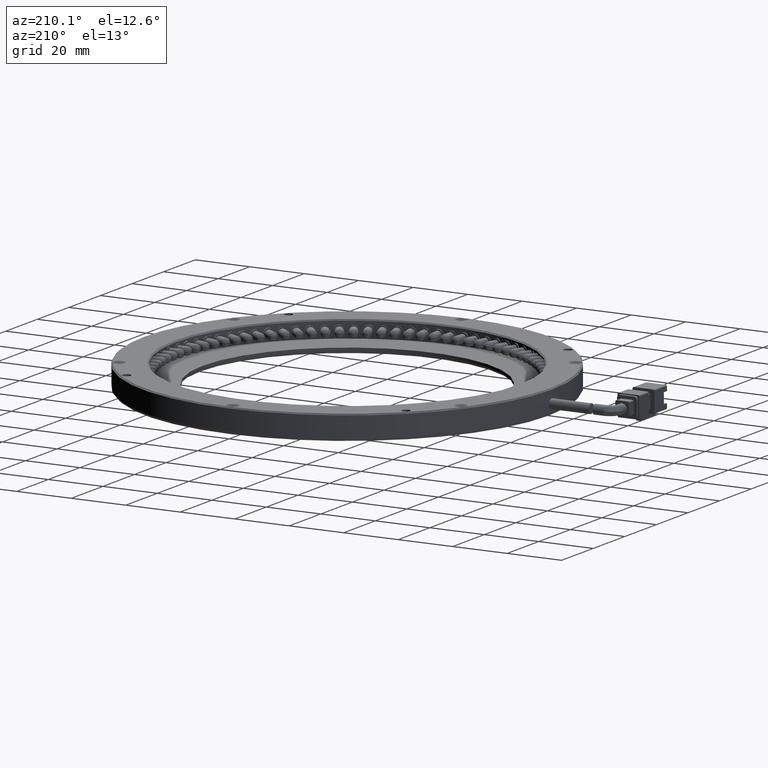
[diagram: clean part render]
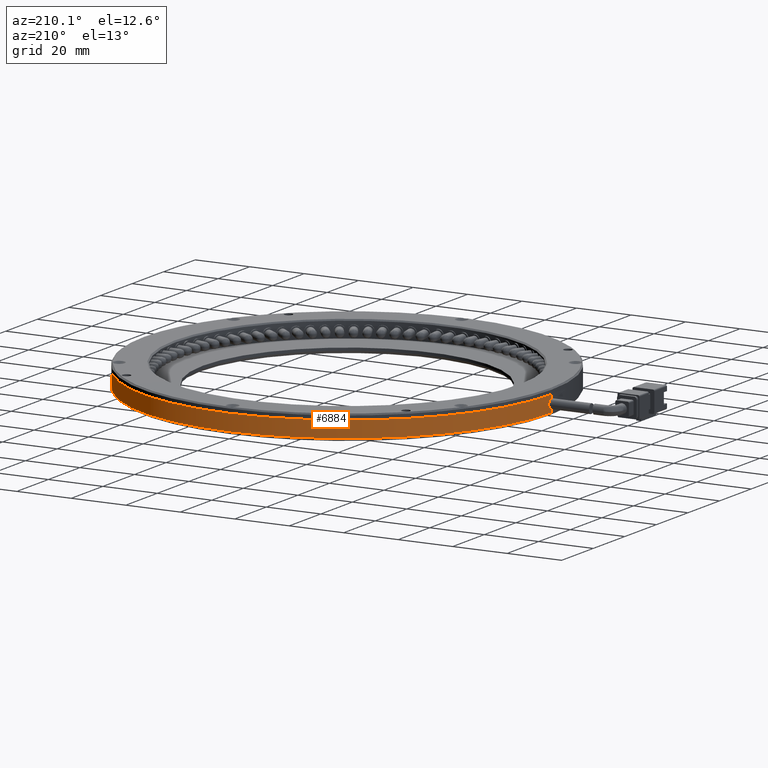
[diagram: same view with one face highlighted and labeled with its STEP entity id]
A machine part, auxiliary view. The second image highlights one B-rep face of the part: STEP entity #6884.
In plain terms, the highlighted cylindrical surface (partial cylindrical patch) has radius 75 mm, axis along (-0, -0, -1).
Its self-contained STEP definition (entity closure, byte-faithful):
#14 = DIRECTION ( 'NONE',  ( 0.0000000000000000000, 0.0000000000000000000, 1.000000000000000000 ) ) ;
#96 = CARTESIAN_POINT ( 'NONE',  ( 85.51580544391339300, 7.870568091706170200, 0.1525449449113775400 ) ) ;
#576 = CARTESIAN_POINT ( 'NONE',  ( 85.58350968957468300, 7.078015308578138800, -0.6356882467442867000 ) ) ;
#1423 = CARTESIAN_POINT ( 'NONE',  ( 85.56051704384231000, 7.358192984523894300, 1.555685530713489100 ) ) ;
#1522 = DIRECTION ( 'NONE',  ( -0.0000000000000000000, -0.0000000000000000000, -1.000000000000000000 ) ) ;
#1578 = CARTESIAN_POINT ( 'NONE',  ( 85.73361178171110500, 4.744528867740992700, 1.319627264999875500 ) ) ;
#1800 = CARTESIAN_POINT ( 'NONE',  ( -64.17760152284266400, 1.095939086294420100, 3.499999999999937400 ) ) ;
#1903 = CARTESIAN_POINT ( 'NONE',  ( 85.65214963128302400, 6.146517489965676300, -0.2466400506818331500 ) ) ;
#1935 = CARTESIAN_POINT ( 'NONE',  ( 85.58606086792164500, 7.045291019548587400, 1.276991541258669600 ) ) ;
#2181 = VERTEX_POINT ( 'NONE', #18053 ) ;
#2228 = CARTESIAN_POINT ( 'NONE',  ( -64.17555533283174900, 1.659988617485706100, -1.160573113875375400 ) ) ;
#2287 = CARTESIAN_POINT ( 'NONE',  ( 85.55198300067344500, 7.459051292020880900, 0.8696390190855857200 ) ) ;
#2341 = LINE ( 'NONE', #64778, #65179 ) ;
#2364 = EDGE_CURVE ( 'NONE', #41482, #13830, #58326, .T. ) ;
#2489 = CARTESIAN_POINT ( 'NONE',  ( -64.16110453020559100, 2.669531688190592200, 1.274237973008328400 ) ) ;
#2776 = VERTEX_POINT ( 'NONE', #62612 ) ;
#2918 = B_SPLINE_CURVE_WITH_KNOTS ( 'NONE', 3,
 ( #24277, #48483, #96, #42627, #6137, #48751, #12272, #54859 ),
 .UNSPECIFIED., .F., .F.,
 ( 4, 2, 2, 4 ),
 ( 0.0000000000000000000, 0.0001610029784808218300, 0.0003220059569616436500, 0.0006440119139232850300 ),
 .UNSPECIFIED. ) ;
#3190 = EDGE_CURVE ( 'NONE', #10618, #63048, #16115, .T. ) ;
#3433 = CARTESIAN_POINT ( 'NONE',  ( 85.46438512428439100, 8.415353828514325200, -0.03739514228137134200 ) ) ;
#3445 = B_SPLINE_CURVE_WITH_KNOTS ( 'NONE', 3,
 ( #77102, #4182, #46818, #10300, #52928, #16481, #59048, #22605, #65147, #28706 ),
 .UNSPECIFIED., .F., .F.,
 ( 4, 2, 2, 2, 4 ),
 ( 0.0000000000000000000, 0.0003378820057506175500, 0.0006757640115012374900, 0.001013646017251857500, 0.001351528023002477400 ),
 .UNSPECIFIED. ) ;
#3549 = EDGE_LOOP ( 'NONE', ( #41357, #23750, #61567, #31688, #57726, #12727, #47667, #16552, #25845, #52069 ) ) ;
#3853 = EDGE_CURVE ( 'NONE', #51274, #10618, #6398, .T. ) ;
#3905 = CARTESIAN_POINT ( 'NONE',  ( 85.79176449676579400, 3.239337933448679200, 3.499999999999948900 ) ) ;
#3949 = B_SPLINE_CURVE_WITH_KNOTS ( 'NONE', 3,
 ( #22767, #59211, #65313, #28873, #71444, #35023, #77535, #41088, #4603, #47254 ),
 .UNSPECIFIED., .F., .F.,
 ( 4, 2, 2, 2, 4 ),
 ( 0.0000000000000000000, 0.0001630378163895705700, 0.0003260756327791411500, 0.0004891134491687117800, 0.0006521512655582823000 ),
 .UNSPECIFIED. ) ;
#4101 = CARTESIAN_POINT ( 'NONE',  ( 85.71046638832190500, 5.191947452107305200, -0.6652447018446755500 ) ) ;
#4182 = CARTESIAN_POINT ( 'NONE',  ( 85.54260023393537400, 7.569244266362247200, 0.8467972752543024800 ) ) ;
#4221 = CARTESIAN_POINT ( 'NONE',  ( 85.73049999876060700, 4.808097012297963600, -0.1226339608918008100 ) ) ;
#4425 = CARTESIAN_POINT ( 'NONE',  ( 85.69643198758593900, 5.441325086166378000, 1.500537510464560400 ) ) ;
#4499 = VERTEX_POINT ( 'NONE', #74899 ) ;
#4561 = CARTESIAN_POINT ( 'NONE',  ( 85.73826633260338800, 4.648175953279853400, -0.5355270289887166200 ) ) ;
#4603 = CARTESIAN_POINT ( 'NONE',  ( 85.55190220552968600, 7.460243029796308700, 1.553691176691353500 ) ) ;
#4747 = EDGE_CURVE ( 'NONE', #50152, #60232, #45806, .T. ) ;
#4847 = CARTESIAN_POINT ( 'NONE',  ( 85.66583456614552000, 5.941517292149493200, -0.05875272363211801000 ) ) ;
#4852 = CARTESIAN_POINT ( 'NONE',  ( 85.55382189115601900, 7.437417976715300600, 0.4277785539693462800 ) ) ;
#4941 = CARTESIAN_POINT ( 'NONE',  ( 85.57246421834504700, 7.214710487214031100, 0.4724769187422969100 ) ) ;
#5115 = VECTOR ( 'NONE', #46187, 1000.000000000000000 ) ;
#5196 = CIRCLE ( 'NONE', #71745, 75.00000000000001400 ) ;
#5346 = CARTESIAN_POINT ( 'NONE',  ( 85.59137485120378100, 6.979025698614962400, 1.861284122017069500 ) ) ;
#5472 = CARTESIAN_POINT ( 'NONE',  ( 85.75964494529216600, 4.163649531573941700, 1.245162455931606100 ) ) ;
#5644 = ORIENTED_EDGE ( 'NONE', *, *, #6532, .F. ) ;
#5737 = VERTEX_POINT ( 'NONE', #73089 ) ;
#6037 = EDGE_CURVE ( 'NONE', #29509, #13191, #21362, .T. ) ;
#6038 = CARTESIAN_POINT ( 'NONE',  ( 10.82239847715735200, 1.095939086294420100, -0.6187330739377272500 ) ) ;
#6128 = VERTEX_POINT ( 'NONE', #40817 ) ;
#6137 = CARTESIAN_POINT ( 'NONE',  ( 85.52384849178957900, 7.781397434964434400, 0.2865401357152651500 ) ) ;
#6398 = CIRCLE ( 'NONE', #37858, 75.00000000000001400 ) ;
#6532 = EDGE_CURVE ( 'NONE', #50652, #4499, #14493, .T. ) ;
#6628 = CARTESIAN_POINT ( 'NONE',  ( 85.60436376792317500, 6.811285033781914900, -0.5276803122504231100 ) ) ;
#6884 = ADVANCED_FACE ( 'NONE', ( #64011, #31646, #64821, #15430 ), #23974, .T. ) ;
#7502 = VERTEX_POINT ( 'NONE', #1800 ) ;
#7557 = EDGE_CURVE ( 'NONE', #54906, #5737, #26903, .T. ) ;
#7640 = CARTESIAN_POINT ( 'NONE',  ( 85.73926044653839500, 4.626389355304823400, 1.023968722299577900 ) ) ;
#7744 = CARTESIAN_POINT ( 'NONE',  ( 85.51769994288605400, 7.849600237396815700, 1.137080879550713900 ) ) ;
#7917 = CARTESIAN_POINT ( 'NONE',  ( 85.58911290672195100, 7.008906390167766200, -0.2704685028219306900 ) ) ;
#8314 = CARTESIAN_POINT ( 'NONE',  ( -64.17254035220459200, 1.972407555903408700, -1.019005894296440800 ) ) ;
#8583 = CARTESIAN_POINT ( 'NONE',  ( -64.16470531755146600, 2.488157947474693100, 1.566408865755257300 ) ) ;
#8733 = ORIENTED_EDGE ( 'NONE', *, *, #39461, .T. ) ;
#9107 = EDGE_LOOP ( 'NONE', ( #38343, #17592, #17819, #45129, #76053, #20526, #23021, #43001, #18406, #69502, #68813, #47680, #37589, #75239 ) ) ;
#9128 = LINE ( 'NONE', #49200, #23427 ) ;
#9292 = CARTESIAN_POINT ( 'NONE',  ( 85.82239847715736400, 1.095939086294429400, 3.499999999999937400 ) ) ;
#9466 = LINE ( 'NONE', #25735, #38078 ) ;
#9521 = CARTESIAN_POINT ( 'NONE',  ( 85.46591878780222400, 8.399850993292897500, -0.1529008328249096000 ) ) ;
#9538 = B_SPLINE_CURVE_WITH_KNOTS ( 'NONE', 3,
 ( #72295, #11091, #41966, #5472, #48104, #11620, #54210, #17782, #60342, #23885 ),
 .UNSPECIFIED., .F., .F.,
 ( 4, 2, 2, 2, 4 ),
 ( 1.301042606982605500E-018, 0.0004718343931649076600, 0.0009436687863298140200, 0.001415503179494720300, 0.001887337572659626700 ),
 .UNSPECIFIED. ) ;
#9979 = ORIENTED_EDGE ( 'NONE', *, *, #51188, .T. ) ;
#10300 = CARTESIAN_POINT ( 'NONE',  ( 85.51410503318128100, 7.890077489507733700, 0.7441503104488043100 ) ) ;
#10333 = CARTESIAN_POINT ( 'NONE',  ( 85.71603764462942400, 5.090007912112359800, -0.2969013905976059000 ) ) ;
#10429 = CARTESIAN_POINT ( 'NONE',  ( 85.62634100142418000, 6.515365515925713800, 1.230104135364652700 ) ) ;
#10538 = CARTESIAN_POINT ( 'NONE',  ( 85.70646657540740400, 5.264897861603083500, 1.555685530713472900 ) ) ;
#10618 = VERTEX_POINT ( 'NONE', #40187 ) ;
#10677 = CARTESIAN_POINT ( 'NONE',  ( 85.74747750607217300, 4.448064863175271300, -0.4013368487209784700 ) ) ;
#10772 = CARTESIAN_POINT ( 'NONE',  ( 85.53827750510335200, 7.618272620791108500, -0.3127182383163930000 ) ) ;
#10986 = CARTESIAN_POINT ( 'NONE',  ( 85.65214963128302400, 6.146517489965628300, 0.2301041353646483800 ) ) ;
#11088 = CARTESIAN_POINT ( 'NONE',  ( 85.59812002527483800, 6.892545738829117100, 0.5864729204963071700 ) ) ;
#11091 = CARTESIAN_POINT ( 'NONE',  ( 85.76380396376370600, 4.060023050997011200, 0.7848510675663845600 ) ) ;
#11382 = DIRECTION ( 'NONE',  ( -0.0000000000000000000, -0.0000000000000000000, -1.000000000000000000 ) ) ;
#11386 = AXIS2_PLACEMENT_3D ( 'NONE', #62571, #26067, #68614 ) ;
#11491 = CARTESIAN_POINT ( 'NONE',  ( 85.56634895020339100, 7.288918311113904200, 1.914695853249525100 ) ) ;
#11620 = CARTESIAN_POINT ( 'NONE',  ( 85.74845840717979700, 4.426891529336969300, 1.646971550318758100 ) ) ;
#11651 = CARTESIAN_POINT ( 'NONE',  ( 85.82039042256055000, 1.644759783096986900, 3.499999999999940900 ) ) ;
#11805 = CARTESIAN_POINT ( 'NONE',  ( 10.82239847715735200, 1.095939086294420100, 3.499999999999937400 ) ) ;
#12135 = ORIENTED_EDGE ( 'NONE', *, *, #24482, .T. ) ;
#12187 = DIRECTION ( 'NONE',  ( 0.0000000000000000000, -1.000000000000000000, -6.662783750647585300E-015 ) ) ;
#12272 = CARTESIAN_POINT ( 'NONE',  ( 85.54484731577322500, 7.543179235955164200, 0.4083990393058972200 ) ) ;
#12727 = ORIENTED_EDGE ( 'NONE', *, *, #40124, .T. ) ;
#12761 = CARTESIAN_POINT ( 'NONE',  ( 85.62143490545028600, 6.583157864560703000, -0.3495414962016590900 ) ) ;
#12833 = VERTEX_POINT ( 'NONE', #1903 ) ;
#13065 = DIRECTION ( 'NONE',  ( -1.000000000000000000, 0.0000000000000000000, 0.0000000000000000000 ) ) ;
#13191 = VERTEX_POINT ( 'NONE', #29261 ) ;
#13807 = CARTESIAN_POINT ( 'NONE',  ( 85.74116555206873600, 4.585687141944184500, 0.7086522643759311000 ) ) ;
#13830 = VERTEX_POINT ( 'NONE', #60846 ) ;
#14084 = CARTESIAN_POINT ( 'NONE',  ( 85.55840858489298700, 7.383131876120323500, -0.3396633064957805800 ) ) ;
#14130 = B_SPLINE_CURVE_WITH_KNOTS ( 'NONE', 3,
 ( #65643, #53443, #4941, #47579, #11088, #53698, #17258, #59807, #23359, #65904 ),
 .UNSPECIFIED., .F., .F.,
 ( 4, 2, 2, 2, 4 ),
 ( 0.0000000000000000000, 0.0003405568085651276600, 0.0006811136171302553300, 0.001021670425695382900, 0.001362227234260510700 ),
 .UNSPECIFIED. ) ;
#14164 = CARTESIAN_POINT ( 'NONE',  ( 85.65955118150787900, 6.036855562714571000, -0.3924791085724572700 ) ) ;
#14209 = CARTESIAN_POINT ( 'NONE',  ( -64.17760152284266400, 1.211546039022340900, -1.250000000000065300 ) ) ;
#14469 = CARTESIAN_POINT ( 'NONE',  ( -64.16872406090023200, 2.252683252493468100, -0.8181323948411262100 ) ) ;
#14472 = EDGE_CURVE ( 'NONE', #51508, #65478, #20769, .T. ) ;
#14493 = CIRCLE ( 'NONE', #57279, 75.00000000000001400 ) ;
#14734 = CARTESIAN_POINT ( 'NONE',  ( -64.16872510365769200, 2.252677900903040900, 1.818253525899463400 ) ) ;
#14848 = VERTEX_POINT ( 'NONE', #57080 ) ;
#15123 = CARTESIAN_POINT ( 'NONE',  ( 85.58568070910276000, 7.050107053887175300, 1.126573936929325100 ) ) ;
#15243 = CARTESIAN_POINT ( 'NONE',  ( 85.51887240053426400, 7.837510290975499700, 1.838374444428899600 ) ) ;
#15262 = CARTESIAN_POINT ( 'NONE',  ( 10.82239847715735200, 1.095939086294420100, 1.881266926062272500 ) ) ;
#15430 = FACE_OUTER_BOUND ( 'NONE', #23312, .T. ) ;
#15704 = CARTESIAN_POINT ( 'NONE',  ( 85.48282974726122100, 8.225442838419338500, -0.4546932816006572000 ) ) ;
#15773 = EDGE_CURVE ( 'NONE', #63048, #16939, #5196, .T. ) ;
#16115 = LINE ( 'NONE', #11651, #46597 ) ;
#16117 = VECTOR ( 'NONE', #11382, 1000.000000000000000 ) ;
#16141 = EDGE_CURVE ( 'NONE', #6128, #24541, #34613, .T. ) ;
#16481 = CARTESIAN_POINT ( 'NONE',  ( 85.48709745703422400, 8.180542651453633200, 0.5768355480302676000 ) ) ;
#16518 = CARTESIAN_POINT ( 'NONE',  ( 85.70384475185316800, 5.311268706839667800, -0.3280353995190593000 ) ) ;
#16552 = ORIENTED_EDGE ( 'NONE', *, *, #25225, .T. ) ;
#16883 = CARTESIAN_POINT ( 'NONE',  ( 85.75446820164104600, 4.287722699461313300, -0.2196701746464338700 ) ) ;
#16939 = VERTEX_POINT ( 'NONE', #48533 ) ;
#16967 = CARTESIAN_POINT ( 'NONE',  ( 85.52422649467455100, 7.777217999457344700, -0.2293130562753486500 ) ) ;
#17258 = CARTESIAN_POINT ( 'NONE',  ( 85.61892491159537100, 6.617014109375039000, 0.7923754904449648000 ) ) ;
#17548 = VERTEX_POINT ( 'NONE', #42306 ) ;
#17592 = ORIENTED_EDGE ( 'NONE', *, *, #73852, .T. ) ;
#17782 = CARTESIAN_POINT ( 'NONE',  ( 85.72843005312157100, 4.852007925811949300, 1.874974287247704700 ) ) ;
#17819 = ORIENTED_EDGE ( 'NONE', *, *, #41593, .T. ) ;
#17960 = DIRECTION ( 'NONE',  ( -1.000000000000000000, 0.0000000000000000000, 0.0000000000000000000 ) ) ;
#18053 = CARTESIAN_POINT ( 'NONE',  ( 85.47090221431160700, 8.348586175741669300, 1.137080879550714100 ) ) ;
#18406 = ORIENTED_EDGE ( 'NONE', *, *, #34644, .T. ) ;
#18858 = DIRECTION ( 'NONE',  ( -0.0000000000000000000, -0.0000000000000000000, -1.000000000000000000 ) ) ;
#18894 = CARTESIAN_POINT ( 'NONE',  ( 85.63025414252013000, 6.461079415330900100, -0.2001284227748541300 ) ) ;
#19419 = CARTESIAN_POINT ( 'NONE',  ( 85.62242167044512100, 6.570290061195431800, 0.08663746957516001200 ) ) ;
#19656 = CARTESIAN_POINT ( 'NONE',  ( 85.71573886229981600, 5.095818791126584200, 1.551562638756804200 ) ) ;
#20261 = CARTESIAN_POINT ( 'NONE',  ( 85.68481646236915600, 5.637461681645296700, -0.6067286376974055900 ) ) ;
#20278 = CARTESIAN_POINT ( 'NONE',  ( 85.55657981451788900, 7.404832795536414400, 1.555685530713489800 ) ) ;
#20397 = CARTESIAN_POINT ( 'NONE',  ( 85.68447640247099200, 5.643783523934614800, 1.836020528911771900 ) ) ;
#20526 = ORIENTED_EDGE ( 'NONE', *, *, #16141, .T. ) ;
#20571 = CARTESIAN_POINT ( 'NONE',  ( -64.16205956965426100, 2.625211793493406300, -0.3807804300869775400 ) ) ;
#20692 = CIRCLE ( 'NONE', #22889, 75.00000000000001400 ) ;
#20707 = CARTESIAN_POINT ( 'NONE',  ( 85.77545153947657800, 3.749208133556766900, -0.6187330739377082700 ) ) ;
#20761 = B_SPLINE_CURVE_WITH_KNOTS ( 'NONE', 3,
 ( #74741, #19419, #44416, #7917, #50548, #14084 ),
 .UNSPECIFIED., .F., .F.,
 ( 4, 2, 4 ),
 ( 0.0000000000000000000, 0.0005626812746977337300, 0.001125362549395467500 ),
 .UNSPECIFIED. ) ;
#20769 = B_SPLINE_CURVE_WITH_KNOTS ( 'NONE', 3,
 ( #71255, #34574, #52909, #34834, #77345, #40897, #4425, #47062, #10538, #53171 ),
 .UNSPECIFIED., .F., .F.,
 ( 4, 2, 2, 2, 4 ),
 ( 0.0000000000000000000, 0.0001822787806490271600, 0.0003645575612980543100, 0.0005468363419470815200, 0.0007291151225961086300 ),
 .UNSPECIFIED. ) ;
#20842 = CARTESIAN_POINT ( 'NONE',  ( -64.17251315748761400, 1.974689776181371800, 2.017659390864295200 ) ) ;
#20961 = DIRECTION ( 'NONE',  ( -0.0000000000000000000, 9.009841873820301300E-015, -1.000000000000000000 ) ) ;
#21113 = DIRECTION ( 'NONE',  ( 0.0000000000000000000, 0.0000000000000000000, -1.000000000000000000 ) ) ;
#21304 = B_SPLINE_CURVE_WITH_KNOTS ( 'NONE', 3,
 ( #50625, #14164, #56738, #20261, #62887, #26398, #68952, #32548 ),
 .UNSPECIFIED., .F., .F.,
 ( 4, 2, 2, 4 ),
 ( 0.0000000000000000000, 0.0005431440541593565400, 0.0008147160812390322600, 0.001086288108318708100 ),
 .UNSPECIFIED. ) ;
#21358 = CARTESIAN_POINT ( 'NONE',  ( 85.49269615595947900, 8.121233534810757600, 1.650374865286696700 ) ) ;
#21362 = LINE ( 'NONE', #64270, #5115 ) ;
#21384 = DIRECTION ( 'NONE',  ( -3.099835203338822200E-013, 1.000000000000000000, 6.805898437415671900E-015 ) ) ;
#21825 = CARTESIAN_POINT ( 'NONE',  ( 85.51166927441568100, 7.916923086170597500, -0.6142956655599958200 ) ) ;
#21853 = EDGE_CURVE ( 'NONE', #41152, #48270, #3949, .T. ) ;
#21897 = ORIENTED_EDGE ( 'NONE', *, *, #67738, .T. ) ;
#21966 = CARTESIAN_POINT ( 'NONE',  ( -64.17760152284266400, 1.095939086294420100, 3.499999999999937400 ) ) ;
#22217 = LINE ( 'NONE', #21966, #38389 ) ;
#22336 = CARTESIAN_POINT ( 'NONE',  ( 85.57919538683016500, 7.131094524322300300, 0.9968778030030118800 ) ) ;
#22389 = CARTESIAN_POINT ( 'NONE',  ( 85.74109641400249900, 4.587171939469059500, 0.4916234151908922500 ) ) ;
#22605 = CARTESIAN_POINT ( 'NONE',  ( 85.46735494845359000, 8.385248726812310600, 0.3052451313797312500 ) ) ;
#22767 = CARTESIAN_POINT ( 'NONE',  ( 85.51769994288605400, 7.849600237396815700, 1.137080879550713900 ) ) ;
#22889 = AXIS2_PLACEMENT_3D ( 'NONE', #63807, #27343, #69898 ) ;
#22972 = CARTESIAN_POINT ( 'NONE',  ( 85.75921642377402100, 4.174017002276134000, -0.005171606683433302600 ) ) ;
#23006 = ORIENTED_EDGE ( 'NONE', *, *, #59236, .F. ) ;
#23021 = ORIENTED_EDGE ( 'NONE', *, *, #61720, .T. ) ;
#23058 = CARTESIAN_POINT ( 'NONE',  ( 85.51588529690997100, 7.869688996189384300, -0.07597708798695970700 ) ) ;
#23312 = EDGE_LOOP ( 'NONE', ( #78231, #64234, #8733, #36846, #68850, #55172, #43846, #71528, #36945, #58163, #5644, #77457, #21897, #23006 ) ) ;
#23348 = VERTEX_POINT ( 'NONE', #2287 ) ;
#23359 = CARTESIAN_POINT ( 'NONE',  ( 85.62734647348361200, 6.501487059391680000, 1.115523598219717100 ) ) ;
#23427 = VECTOR ( 'NONE', #18858, 1000.000000000000000 ) ;
#23750 = ORIENTED_EDGE ( 'NONE', *, *, #42681, .T. ) ;
#23830 = CARTESIAN_POINT ( 'NONE',  ( 85.77545153947657800, 3.749208133556743800, 1.881266926062290500 ) ) ;
#23885 = CARTESIAN_POINT ( 'NONE',  ( 85.71165016811922000, 5.170246532691408000, 1.916150646992546400 ) ) ;
#23974 = CYLINDRICAL_SURFACE ( 'NONE', #52737, 75.00000000000001400 ) ;
#24277 = CARTESIAN_POINT ( 'NONE',  ( 85.51475269276178900, 7.882117814465390300, 0.04405762373675878300 ) ) ;
#24482 = EDGE_CURVE ( 'NONE', #26237, #78393, #59611, .T. ) ;
#24541 = VERTEX_POINT ( 'NONE', #50262 ) ;
#24634 = EDGE_CURVE ( 'NONE', #57186, #23348, #27937, .T. ) ;
#24760 = CARTESIAN_POINT ( 'NONE',  ( 85.55198300067344500, 7.459051292020888000, -0.6652447018446611100 ) ) ;
#25006 = CARTESIAN_POINT ( 'NONE',  ( 10.82239847715735200, 1.095939086294420100, -0.6187330739377263600 ) ) ;
#25193 = EDGE_CURVE ( 'NONE', #64268, #50652, #22217, .T. ) ;
#25225 = EDGE_CURVE ( 'NONE', #63387, #65162, #65163, .T. ) ;
#25271 = DIRECTION ( 'NONE',  ( -0.0000000000000000000, 6.757381405368177900E-015, -1.000000000000000000 ) ) ;
#25570 = EDGE_CURVE ( 'NONE', #12833, #50152, #21304, .T. ) ;
#25735 = CARTESIAN_POINT ( 'NONE',  ( 85.82239847715736400, 1.095939086294429400, 3.499999999999937400 ) ) ;
#25845 = ORIENTED_EDGE ( 'NONE', *, *, #75321, .T. ) ;
#26067 = DIRECTION ( 'NONE',  ( -0.0000000000000000000, 6.952995436027395900E-015, -1.000000000000000000 ) ) ;
#26139 = CARTESIAN_POINT ( 'NONE',  ( 85.57184834604314000, 7.221443879377946300, 1.530630557235905600 ) ) ;
#26237 = VERTEX_POINT ( 'NONE', #20707 ) ;
#26373 = EDGE_CURVE ( 'NONE', #78393, #39655, #34603, .T. ) ;
#26398 = CARTESIAN_POINT ( 'NONE',  ( 85.70043691755242300, 5.372293763320101300, -0.6590222359865015600 ) ) ;
#26528 = CARTESIAN_POINT ( 'NONE',  ( 85.66545761522809200, 5.946270426809237000, 1.633155076523157300 ) ) ;
#26701 = CARTESIAN_POINT ( 'NONE',  ( -64.15718569520919300, 2.845784040264265800, 0.2705739323350450600 ) ) ;
#26892 = B_SPLINE_CURVE_WITH_KNOTS ( 'NONE', 3,
 ( #10429, #66041, #72173, #35754, #78260, #41830, #5346, #47965, #11491, #54090 ),
 .UNSPECIFIED., .F., .F.,
 ( 4, 2, 2, 2, 4 ),
 ( 0.0000000000000000000, 0.0003112414288711232100, 0.0006224828577422464200, 0.0009337242866133696800, 0.001244965715484492800 ),
 .UNSPECIFIED. ) ;
#26903 = B_SPLINE_CURVE_WITH_KNOTS ( 'NONE', 3,
 ( #44629, #44372, #56866, #20397, #63019, #26528, #69101, #32667, #75205, #38798 ),
 .UNSPECIFIED., .F., .F.,
 ( 4, 2, 2, 2, 4 ),
 ( 0.0000000000000000000, 0.0003607513604823640900, 0.0007215027209647281900, 0.001082254081447092300, 0.001443005441929456400 ),
 .UNSPECIFIED. ) ;
#26965 = CARTESIAN_POINT ( 'NONE',  ( -64.17649974751833500, 1.554441329128374300, 2.204396376914379700 ) ) ;
#27343 = DIRECTION ( 'NONE',  ( -0.0000000000000000000, -7.575289211764191400E-015, 1.000000000000000000 ) ) ;
#27480 = CARTESIAN_POINT ( 'NONE',  ( 85.47593712001203400, 8.296763544746992700, 1.359307089440022500 ) ) ;
#27927 = CARTESIAN_POINT ( 'NONE',  ( 85.54212341058972400, 7.574844169265076300, -0.6652447018446604500 ) ) ;
#27937 = B_SPLINE_CURVE_WITH_KNOTS ( 'NONE', 3,
 ( #75763, #39353, #15123, #58786, #22336, #64881, #28436, #71011 ),
 .UNSPECIFIED., .F., .F.,
 ( 4, 2, 2, 4 ),
 ( 0.0000000000000000000, 0.0001526496386353035000, 0.0003052992772706070100, 0.0006105985545412188900 ),
 .UNSPECIFIED. ) ;
#28049 = CARTESIAN_POINT ( 'NONE',  ( 85.74122283623991300, 4.584456916682782400, 0.6021971586204419900 ) ) ;
#28161 = DIRECTION ( 'NONE',  ( 0.0000000000000000000, 0.0000000000000000000, 1.000000000000000000 ) ) ;
#28343 = DIRECTION ( 'NONE',  ( -0.0000000000000000000, -0.0000000000000000000, -1.000000000000000000 ) ) ;
#28371 = CARTESIAN_POINT ( 'NONE',  ( 85.70987398692894000, 5.202764109759980800, 1.555685530713472500 ) ) ;
#28436 = CARTESIAN_POINT ( 'NONE',  ( 85.56054389099868700, 7.358510588592775300, 0.8858044792301389400 ) ) ;
#28706 = CARTESIAN_POINT ( 'NONE',  ( 85.46454834682926100, 8.413688933989346800, 0.07894134466700925000 ) ) ;
#28823 = CARTESIAN_POINT ( 'NONE',  ( 85.72736683940287600, 4.873277809031995000, -0.6288183887472881300 ) ) ;
#28873 = CARTESIAN_POINT ( 'NONE',  ( 85.52516906148778700, 7.766520951071161200, 1.338185988017853000 ) ) ;
#28892 = CARTESIAN_POINT ( 'NONE',  ( 85.63025414252013000, 6.461079415330900100, -0.2001284227748541300 ) ) ;
#29098 = CARTESIAN_POINT ( 'NONE',  ( 85.76299132774003900, 4.080810903052869400, 0.3018867300238757800 ) ) ;
#29110 = VECTOR ( 'NONE', #63114, 1000.000000000000000 ) ;
#29194 = CARTESIAN_POINT ( 'NONE',  ( 85.51475269276178900, 7.882117814465390300, 0.04405762373675878300 ) ) ;
#29261 = CARTESIAN_POINT ( 'NONE',  ( 85.63025414252011600, 6.461079415330958800, 0.2417320423413817600 ) ) ;
#29380 = VERTEX_POINT ( 'NONE', #28049 ) ;
#29509 = VERTEX_POINT ( 'NONE', #28892 ) ;
#30063 = CARTESIAN_POINT ( 'NONE',  ( 85.77545153947657800, 3.749208133556743800, 3.499999999999952000 ) ) ;
#30137 = AXIS2_PLACEMENT_3D ( 'NONE', #57428, #20961, #63571 ) ;
#31156 = DIRECTION ( 'NONE',  ( -1.527713141176907900E-013, -1.000000000000000000, -6.804452834519024300E-015 ) ) ;
#31646 = FACE_BOUND ( 'NONE', #3549, .T. ) ;
#31688 = ORIENTED_EDGE ( 'NONE', *, *, #41377, .T. ) ;
#31856 = CARTESIAN_POINT ( 'NONE',  ( 85.81477244671998500, 2.165446640857727500, 1.532429716759996500 ) ) ;
#31888 = DIRECTION ( 'NONE',  ( -0.0000000000000000000, -0.0000000000000000000, -1.000000000000000000 ) ) ;
#32283 = CARTESIAN_POINT ( 'NONE',  ( 85.58131209924026500, 7.104777662482527000, 1.453454754232750700 ) ) ;
#32378 = CARTESIAN_POINT ( 'NONE',  ( -64.17760152284266400, 1.095939086294420100, -1.250000000000064400 ) ) ;
#32495 = VERTEX_POINT ( 'NONE', #23830 ) ;
#32548 = CARTESIAN_POINT ( 'NONE',  ( 85.71046638832190500, 5.191947452107305200, -0.6652447018446755500 ) ) ;
#32667 = CARTESIAN_POINT ( 'NONE',  ( 85.65278493696348500, 6.137422005559491500, 1.324651496669284600 ) ) ;
#32843 = CARTESIAN_POINT ( 'NONE',  ( -64.15744734107639100, 2.834679593530885700, 0.7288483726947201400 ) ) ;
#33103 = CARTESIAN_POINT ( 'NONE',  ( -64.17760152284266400, 1.095939086294413800, 2.249999999999931600 ) ) ;
#33632 = CARTESIAN_POINT ( 'NONE',  ( 85.47090221431160700, 8.348586175741669300, 1.137080879550714100 ) ) ;
#34394 = DIRECTION ( 'NONE',  ( -0.0000000000000000000, 6.804568988770635500E-015, -1.000000000000000000 ) ) ;
#34574 = CARTESIAN_POINT ( 'NONE',  ( 85.68236644346437500, 5.676920768953632300, 1.150557925380190300 ) ) ;
#34603 = LINE ( 'NONE', #3905, #48854 ) ;
#34613 = B_SPLINE_CURVE_WITH_KNOTS ( 'NONE', 3,
 ( #71488, #65364, #47312, #10772, #53409, #16967, #59521, #23058, #65608, #29194 ),
 .UNSPECIFIED., .F., .F.,
 ( 4, 2, 2, 2, 4 ),
 ( 0.0000000000000000000, 0.0001781455276842309700, 0.0003562910553684619400, 0.0005344365830526906600, 0.0007125821107369194300 ),
 .UNSPECIFIED. ) ;
#34628 = CARTESIAN_POINT ( 'NONE',  ( 85.74060859201789200, 4.597708266502436000, 0.3822633824445489400 ) ) ;
#34644 = EDGE_CURVE ( 'NONE', #14848, #44954, #26892, .T. ) ;
#34834 = CARTESIAN_POINT ( 'NONE',  ( 85.68649360600751700, 5.609017959873675400, 1.319685156415308000 ) ) ;
#34928 = EDGE_CURVE ( 'NONE', #23348, #57572, #3445, .T. ) ;
#35023 = CARTESIAN_POINT ( 'NONE',  ( 85.53451470470709200, 7.661082678879917100, 1.465289004641288100 ) ) ;
#35077 = B_SPLINE_CURVE_WITH_KNOTS ( 'NONE', 3,
 ( #62932, #14209, #75121, #38701, #2228, #44813, #8314, #50934, #14469, #57044, #20571, #63198, #26701, #69287, #32843, #75393, #38971, #2489, #45079, #8583, #51196, #14734, #57306, #20842, #63448, #26965, #69554, #33103 ),
 .UNSPECIFIED., .F., .F.,
 ( 4, 2, 2, 2, 2, 2, 2, 2, 2, 2, 2, 2, 2, 4 ),
 ( 0.005470357491635789700, 0.005812254888678368100, 0.006154152285720946400, 0.006496049682763525700, 0.006837947079806104000, 0.007521741873891260800, 0.008205536667976416600, 0.008547434065018996700, 0.008889331462061573300, 0.009231228859104153400, 0.009573126256146730100, 0.009915023653189308400, 0.01025692105023188700, 0.01094071584431704000 ),
 .UNSPECIFIED. ) ;
#35222 = CARTESIAN_POINT ( 'NONE',  ( 85.76408291473212800, 4.052953401268913700, 0.6254529725739557100 ) ) ;
#35247 = CARTESIAN_POINT ( 'NONE',  ( 85.70384475185316800, 5.311268706839667800, -0.3280353995190593000 ) ) ;
#35436 = AXIS2_PLACEMENT_3D ( 'NONE', #25006, #67551, #31156 ) ;
#35476 = CARTESIAN_POINT ( 'NONE',  ( -64.17760152284266400, 1.095939086294420100, -2.500000000000089700 ) ) ;
#35754 = CARTESIAN_POINT ( 'NONE',  ( 85.61782358324288100, 6.631867412764503200, 1.628842765550396500 ) ) ;
#36826 = CARTESIAN_POINT ( 'NONE',  ( 85.55749214440480400, 7.394016137883291200, 1.916150646992560400 ) ) ;
#36846 = ORIENTED_EDGE ( 'NONE', *, *, #2364, .T. ) ;
#36896 = EDGE_LOOP ( 'NONE', ( #78764, #46977, #9979, #12135 ) ) ;
#36945 = ORIENTED_EDGE ( 'NONE', *, *, #15773, .T. ) ;
#37017 = CARTESIAN_POINT ( 'NONE',  ( 85.56814934549977600, 7.266977311126111300, -0.6667971167038824200 ) ) ;
#37589 = ORIENTED_EDGE ( 'NONE', *, *, #43386, .T. ) ;
#37858 = AXIS2_PLACEMENT_3D ( 'NONE', #6038, #48656, #12187 ) ;
#38039 = CARTESIAN_POINT ( 'NONE',  ( 85.73028825635047700, 4.812906604987117200, 1.408270254894517400 ) ) ;
#38078 = VECTOR ( 'NONE', #31888, 1000.000000000000000 ) ;
#38343 = ORIENTED_EDGE ( 'NONE', *, *, #34928, .T. ) ;
#38389 = VECTOR ( 'NONE', #28343, 1000.000000000000000 ) ;
#38390 = CARTESIAN_POINT ( 'NONE',  ( 85.58575612820553100, 7.049137170891261100, 1.323725094349820000 ) ) ;
#38701 = CARTESIAN_POINT ( 'NONE',  ( -64.17631727402043400, 1.548862813064827400, -1.194213056580401900 ) ) ;
#38798 = CARTESIAN_POINT ( 'NONE',  ( 85.64846584938456400, 6.200803590560445500, 1.090569251643724400 ) ) ;
#38804 = CARTESIAN_POINT ( 'NONE',  ( 85.68150632212675100, 5.690933390452384400, 1.090569251643721100 ) ) ;
#38897 = CARTESIAN_POINT ( 'NONE',  ( 85.82239847715736400, 1.095939086294429400, 3.499999999999937400 ) ) ;
#38971 = CARTESIAN_POINT ( 'NONE',  ( -64.15921619028435400, 2.757076887694246600, 1.062369380701858200 ) ) ;
#39353 = CARTESIAN_POINT ( 'NONE',  ( 85.58624266238298600, 7.043007074514176400, 1.178834870566933400 ) ) ;
#39461 = EDGE_CURVE ( 'NONE', #39550, #41482, #20692, .T. ) ;
#39529 = CARTESIAN_POINT ( 'NONE',  ( 85.58593526340877100, 7.046869031339358700, 1.230104135364656200 ) ) ;
#39550 = VERTEX_POINT ( 'NONE', #46255 ) ;
#39655 = VERTEX_POINT ( 'NONE', #60018 ) ;
#40120 = B_SPLINE_CURVE_WITH_KNOTS ( 'NONE', 3,
 ( #69771, #75896, #51697, #15243, #57812, #21358, #63948, #27480, #70038, #33632 ),
 .UNSPECIFIED., .F., .F.,
 ( 4, 2, 2, 2, 4 ),
 ( 0.0000000000000000000, 0.0003388901469546687100, 0.0006777802939093398000, 0.001016670440864010800, 0.001355560587818682000 ),
 .UNSPECIFIED. ) ;
#40124 = EDGE_CURVE ( 'NONE', #65478, #29380, #57486, .T. ) ;
#40187 = CARTESIAN_POINT ( 'NONE',  ( 85.82039042256055000, 1.644759783096986900, -0.6187330739377242500 ) ) ;
#40246 = EDGE_CURVE ( 'NONE', #13830, #64205, #42391, .T. ) ;
#40558 = DIRECTION ( 'NONE',  ( -0.0000000000000000000, -0.0000000000000000000, -1.000000000000000000 ) ) ;
#40712 = CARTESIAN_POINT ( 'NONE',  ( 85.73649325478957900, 4.685116385669998000, 0.06229449883486167700 ) ) ;
#40817 = CARTESIAN_POINT ( 'NONE',  ( 85.55840858489298700, 7.383131876120323500, -0.3396633064957805800 ) ) ;
#40897 = CARTESIAN_POINT ( 'NONE',  ( 85.69339446705160400, 5.493177239584281500, 1.463997073509666300 ) ) ;
#41041 = CARTESIAN_POINT ( 'NONE',  ( 85.71046638832190500, 5.191947452107305200, -0.6652447018446755500 ) ) ;
#41088 = CARTESIAN_POINT ( 'NONE',  ( 85.54718156770535100, 7.515387320096937900, 1.542545855847627000 ) ) ;
#41152 = VERTEX_POINT ( 'NONE', #7744 ) ;
#41334 = CARTESIAN_POINT ( 'NONE',  ( 85.67899586537868100, 5.732178499506000300, -0.2186353966747894600 ) ) ;
#41357 = ORIENTED_EDGE ( 'NONE', *, *, #4747, .T. ) ;
#41377 = EDGE_CURVE ( 'NONE', #5737, #51508, #44776, .T. ) ;
#41482 = VERTEX_POINT ( 'NONE', #65711 ) ;
#41593 = EDGE_CURVE ( 'NONE', #2776, #29509, #50855, .T. ) ;
#41830 = CARTESIAN_POINT ( 'NONE',  ( 85.59918659522907100, 6.878641428093961200, 1.825291350577645400 ) ) ;
#41966 = CARTESIAN_POINT ( 'NONE',  ( 85.76302581473748900, 4.079917948819633500, 0.9414665052236703700 ) ) ;
#42121 = VECTOR ( 'NONE', #1522, 1000.000000000000000 ) ;
#42306 = CARTESIAN_POINT ( 'NONE',  ( -64.17760152284266400, 1.095939086294413800, 2.249999999999931600 ) ) ;
#42391 = CIRCLE ( 'NONE', #30137, 75.00000000000001400 ) ;
#42627 = CARTESIAN_POINT ( 'NONE',  ( 85.52036745981719400, 7.820080096712851000, 0.2467743657567400600 ) ) ;
#42681 = EDGE_CURVE ( 'NONE', #60232, #54906, #9538, .T. ) ;
#43001 = ORIENTED_EDGE ( 'NONE', *, *, #49103, .T. ) ;
#43103 = CARTESIAN_POINT ( 'NONE',  ( 85.59095442293406100, 6.984109755697547300, -0.6076133681604805000 ) ) ;
#43386 = EDGE_CURVE ( 'NONE', #48270, #57186, #69208, .T. ) ;
#43846 = ORIENTED_EDGE ( 'NONE', *, *, #3853, .T. ) ;
#43933 = EDGE_CURVE ( 'NONE', #13191, #6128, #20761, .T. ) ;
#44122 = CARTESIAN_POINT ( 'NONE',  ( 85.73800014214573700, 4.653285474603191800, 1.128122048712214300 ) ) ;
#44372 = CARTESIAN_POINT ( 'NONE',  ( 85.70505219314422600, 5.291522949617710300, 1.914492767225118600 ) ) ;
#44416 = CARTESIAN_POINT ( 'NONE',  ( 85.61327012385648100, 6.695071809825698500, -0.05342082314185581800 ) ) ;
#44508 = CARTESIAN_POINT ( 'NONE',  ( 85.58593526340877100, 7.046869031339358700, 1.230104135364656200 ) ) ;
#44629 = CARTESIAN_POINT ( 'NONE',  ( 85.71165016811922000, 5.170246532691408000, 1.916150646992546400 ) ) ;
#44776 = CIRCLE ( 'NONE', #75452, 75.00000000000001400 ) ;
#44813 = CARTESIAN_POINT ( 'NONE',  ( -64.17366216220651200, 1.871900513010396100, -1.072748805248875400 ) ) ;
#44954 = VERTEX_POINT ( 'NONE', #36826 ) ;
#45079 = CARTESIAN_POINT ( 'NONE',  ( -64.16224778660425400, 2.614765466892625200, 1.376736934311823600 ) ) ;
#45129 = ORIENTED_EDGE ( 'NONE', *, *, #6037, .T. ) ;
#45806 = B_SPLINE_CURVE_WITH_KNOTS ( 'NONE', 3,
 ( #41041, #65013, #28823, #4561, #47217, #10677, #53312, #16883, #59422, #22972, #65521, #29098, #71656, #35222 ),
 .UNSPECIFIED., .F., .F.,
 ( 4, 2, 2, 2, 2, 2, 4 ),
 ( 0.0000000000000000000, 0.0004796085187468881300, 0.0007194127781203324900, 0.0009592170374937769100, 0.001199021296867221100, 0.001438825556240665400, 0.001918434074987553400 ),
 .UNSPECIFIED. ) ;
#46187 = DIRECTION ( 'NONE',  ( 0.0000000000000000000, 0.0000000000000000000, 1.000000000000000000 ) ) ;
#46255 = CARTESIAN_POINT ( 'NONE',  ( 85.82239847715736400, 1.095939086294429400, 1.881266926062278500 ) ) ;
#46597 = VECTOR ( 'NONE', #14, 1000.000000000000000 ) ;
#46818 = CARTESIAN_POINT ( 'NONE',  ( 85.53310130919592800, 7.677901349634292500, 0.8185969920315081500 ) ) ;
#46857 = CARTESIAN_POINT ( 'NONE',  ( 85.72630692502220000, 4.892552414875603400, -0.1982387295972852000 ) ) ;
#46977 = ORIENTED_EDGE ( 'NONE', *, *, #71929, .T. ) ;
#47062 = CARTESIAN_POINT ( 'NONE',  ( 85.70297478753252600, 5.327081371156658000, 1.546056791929100400 ) ) ;
#47217 = CARTESIAN_POINT ( 'NONE',  ( 85.74156195678041600, 4.577771682309564700, -0.4965976644851624000 ) ) ;
#47254 = CARTESIAN_POINT ( 'NONE',  ( 85.55657981451788900, 7.404832795536414400, 1.555685530713489800 ) ) ;
#47312 = CARTESIAN_POINT ( 'NONE',  ( 85.54834886660904700, 7.501854481231197800, -0.3356100839879298500 ) ) ;
#47313 = B_SPLINE_CURVE_WITH_KNOTS ( 'NONE', 3,
 ( #51622, #3433, #9521, #52152, #15704, #58265, #21825, #64405, #27927, #70497 ),
 .UNSPECIFIED., .F., .F.,
 ( 4, 2, 2, 2, 4 ),
 ( 0.0000000000000000000, 0.0003438516339919137100, 0.0006877032679838274200, 0.001031554901975740900, 0.001375406535967654600 ),
 .UNSPECIFIED. ) ;
#47489 = CARTESIAN_POINT ( 'NONE',  ( 85.65853093038289500, 6.051971680452370000, 0.08106064510655859600 ) ) ;
#47579 = CARTESIAN_POINT ( 'NONE',  ( 85.58979646648438700, 6.999149202339016700, 0.5418487738255976000 ) ) ;
#47667 = ORIENTED_EDGE ( 'NONE', *, *, #70920, .T. ) ;
#47680 = ORIENTED_EDGE ( 'NONE', *, *, #21853, .T. ) ;
#47906 = CARTESIAN_POINT ( 'NONE',  ( 85.70384475185316800, 5.311268706839667800, -0.3280353995190593000 ) ) ;
#47965 = CARTESIAN_POINT ( 'NONE',  ( 85.57499151202786400, 7.183662032832725900, 1.905729125419450400 ) ) ;
#48104 = CARTESIAN_POINT ( 'NONE',  ( 85.75694861392193500, 4.230089149045356000, 1.395247904257803200 ) ) ;
#48270 = VERTEX_POINT ( 'NONE', #20278 ) ;
#48483 = CARTESIAN_POINT ( 'NONE',  ( 85.51475269276180300, 7.882117814465390300, 0.09833294523472001200 ) ) ;
#48533 = CARTESIAN_POINT ( 'NONE',  ( 85.82239847715736400, 1.095939086294429400, 1.532429716759989600 ) ) ;
#48656 = DIRECTION ( 'NONE',  ( -0.0000000000000000000, 6.663212063531339900E-015, -1.000000000000000000 ) ) ;
#48749 = EDGE_CURVE ( 'NONE', #2181, #41152, #74950, .T. ) ;
#48751 = CARTESIAN_POINT ( 'NONE',  ( 85.53569154040432900, 7.648174592361496800, 0.3789055607339499900 ) ) ;
#48854 = VECTOR ( 'NONE', #28161, 1000.000000000000000 ) ;
#49103 = EDGE_CURVE ( 'NONE', #67242, #14848, #14130, .T. ) ;
#49200 = CARTESIAN_POINT ( 'NONE',  ( -64.17760152284266400, 1.095939086294420100, 3.499999999999937400 ) ) ;
#49239 = CARTESIAN_POINT ( 'NONE',  ( 85.61051763473780300, 6.730000977434754900, -0.4750223705680201600 ) ) ;
#49966 = CARTESIAN_POINT ( 'NONE',  ( 85.79983291384401400, 2.935592665736297800, 3.499999999999955600 ) ) ;
#50152 = VERTEX_POINT ( 'NONE', #4101 ) ;
#50262 = CARTESIAN_POINT ( 'NONE',  ( 85.51475269276178900, 7.882117814465390300, 0.04405762373675878300 ) ) ;
#50271 = CARTESIAN_POINT ( 'NONE',  ( 85.74084618631185600, 4.592577370694246300, 0.8144882120009741000 ) ) ;
#50275 = EDGE_CURVE ( 'NONE', #75365, #7502, #53659, .T. ) ;
#50364 = CARTESIAN_POINT ( 'NONE',  ( 85.55657981451788900, 7.404832795536414400, 1.555685530713489800 ) ) ;
#50548 = CARTESIAN_POINT ( 'NONE',  ( 85.57444949520463200, 7.192453194037842200, -0.3354664441904975900 ) ) ;
#50625 = CARTESIAN_POINT ( 'NONE',  ( 85.65214963128302400, 6.146517489965676300, -0.2466400506818331500 ) ) ;
#50652 = VERTEX_POINT ( 'NONE', #35476 ) ;
#50855 = B_SPLINE_CURVE_WITH_KNOTS ( 'NONE', 3,
 ( #24760, #61220, #37017, #576, #43103, #6628, #49239, #12761, #55349, #18894 ),
 .UNSPECIFIED., .F., .F.,
 ( 4, 2, 2, 2, 4 ),
 ( 0.0000000000000000000, 0.0002875541741549242900, 0.0005751083483098485800, 0.0008626625224647728800, 0.001150216696619697200 ),
 .UNSPECIFIED. ) ;
#50934 = CARTESIAN_POINT ( 'NONE',  ( -64.17007602798992100, 2.162623009860407100, -0.8920349465196285600 ) ) ;
#51188 = EDGE_CURVE ( 'NONE', #32495, #26237, #62782, .T. ) ;
#51196 = CARTESIAN_POINT ( 'NONE',  ( -64.16603006302712200, 2.415880627403558000, 1.654812266917435200 ) ) ;
#51274 = VERTEX_POINT ( 'NONE', #55301 ) ;
#51508 = VERTEX_POINT ( 'NONE', #38804 ) ;
#51622 = CARTESIAN_POINT ( 'NONE',  ( 85.46454834682926100, 8.413688933989346800, 0.07894134466700925000 ) ) ;
#51697 = CARTESIAN_POINT ( 'NONE',  ( 85.53824616566160400, 7.619289688687723100, 1.899507957399646300 ) ) ;
#52069 = ORIENTED_EDGE ( 'NONE', *, *, #25570, .T. ) ;
#52152 = CARTESIAN_POINT ( 'NONE',  ( 85.47510498030942500, 8.305354129492469500, -0.3654404759597204600 ) ) ;
#52737 = AXIS2_PLACEMENT_3D ( 'NONE', #73224, #61527, #13065 ) ;
#52909 = CARTESIAN_POINT ( 'NONE',  ( 85.68347951260267300, 5.658741578750908600, 1.208800489260948100 ) ) ;
#52928 = CARTESIAN_POINT ( 'NONE',  ( 85.50466598511843600, 7.992880531633675300, 0.6983124654467364200 ) ) ;
#52966 = CARTESIAN_POINT ( 'NONE',  ( 85.71009021527021300, 5.200323804442635200, -0.3207454181537956500 ) ) ;
#53171 = CARTESIAN_POINT ( 'NONE',  ( 85.70987398692894000, 5.202764109759980800, 1.555685530713472500 ) ) ;
#53312 = CARTESIAN_POINT ( 'NONE',  ( 85.75009714310807900, 4.388738571937580000, -0.3444714630379002200 ) ) ;
#53409 = CARTESIAN_POINT ( 'NONE',  ( 85.53323718989514600, 7.675694090355480400, -0.2937632348097756800 ) ) ;
#53443 = CARTESIAN_POINT ( 'NONE',  ( 85.56333837768777100, 7.325270542858256700, 0.4473735952365118800 ) ) ;
#53659 = CIRCLE ( 'NONE', #78916, 75.00000000000001400 ) ;
#53698 = CARTESIAN_POINT ( 'NONE',  ( 85.61268758135908300, 6.701457566839729400, 0.7108312916110628400 ) ) ;
#54090 = CARTESIAN_POINT ( 'NONE',  ( 85.55749214440480400, 7.394016137883291200, 1.916150646992560400 ) ) ;
#54091 = EDGE_CURVE ( 'NONE', #16939, #4499, #56898, .T. ) ;
#54210 = CARTESIAN_POINT ( 'NONE',  ( 85.74258159485586400, 4.558276619965700300, 1.746677760756298400 ) ) ;
#54394 = DIRECTION ( 'NONE',  ( 0.0000000000000000000, 0.0000000000000000000, 1.000000000000000000 ) ) ;
#54859 = CARTESIAN_POINT ( 'NONE',  ( 85.55382189115601900, 7.437417976715300600, 0.4277785539693462800 ) ) ;
#54906 = VERTEX_POINT ( 'NONE', #67685 ) ;
#55172 = ORIENTED_EDGE ( 'NONE', *, *, #57264, .T. ) ;
#55301 = CARTESIAN_POINT ( 'NONE',  ( 85.81477244671998500, 2.165446640857760800, -0.6187330739377201500 ) ) ;
#55349 = CARTESIAN_POINT ( 'NONE',  ( 85.62612479731733100, 6.518656187041920600, -0.2781801025778198300 ) ) ;
#56121 = CARTESIAN_POINT ( 'NONE',  ( 85.70987398692894000, 5.202764109759980800, 1.555685530713472500 ) ) ;
#56390 = CARTESIAN_POINT ( 'NONE',  ( 85.74122283623991300, 4.584456916682782400, 0.6021971586204419900 ) ) ;
#56738 = CARTESIAN_POINT ( 'NONE',  ( 85.66927740037265000, 5.888947719723438100, -0.5052194006168216900 ) ) ;
#56866 = CARTESIAN_POINT ( 'NONE',  ( 85.69825760274845500, 5.410950155728919200, 1.901112523295545300 ) ) ;
#56898 = LINE ( 'NONE', #9292, #71177 ) ;
#56972 = CARTESIAN_POINT ( 'NONE',  ( 85.65214963128302400, 6.146517489965628300, 3.500000000000011100 ) ) ;
#57044 = CARTESIAN_POINT ( 'NONE',  ( -64.16472828938128700, 2.494826370910634400, -0.5759807946237031100 ) ) ;
#57080 = CARTESIAN_POINT ( 'NONE',  ( 85.62634100142418000, 6.515365515925713800, 1.230104135364652700 ) ) ;
#57186 = VERTEX_POINT ( 'NONE', #39529 ) ;
#57264 = EDGE_CURVE ( 'NONE', #64205, #51274, #2341, .T. ) ;
#57279 = AXIS2_PLACEMENT_3D ( 'NONE', #57576, #21113, #63720 ) ;
#57306 = CARTESIAN_POINT ( 'NONE',  ( -64.17005402205187200, 2.164134769224698400, 1.890845348924354000 ) ) ;
#57428 = CARTESIAN_POINT ( 'NONE',  ( 10.82239847715735200, 1.095939086294420100, 1.532429716759987400 ) ) ;
#57486 = B_SPLINE_CURVE_WITH_KNOTS ( 'NONE', 3,
 ( #56121, #19656, #74471, #38039, #1578, #44122, #7640, #50271, #13807, #56390 ),
 .UNSPECIFIED., .F., .F.,
 ( 4, 2, 2, 2, 4 ),
 ( 0.0000000000000000000, 0.0003183065607530632600, 0.0006366131215061265200, 0.0009549196822591897200, 0.001273226243012253000 ),
 .UNSPECIFIED. ) ;
#57572 = VERTEX_POINT ( 'NONE', #73160 ) ;
#57576 = CARTESIAN_POINT ( 'NONE',  ( 10.82239847715735200, 1.095939086294420100, -2.500000000000089700 ) ) ;
#57726 = ORIENTED_EDGE ( 'NONE', *, *, #14472, .T. ) ;
#57812 = CARTESIAN_POINT ( 'NONE',  ( 85.50935955707480200, 7.941810993960867600, 1.790197974517546000 ) ) ;
#57828 = DIRECTION ( 'NONE',  ( -0.0000000000000000000, -6.804568988770635500E-015, 1.000000000000000000 ) ) ;
#58163 = ORIENTED_EDGE ( 'NONE', *, *, #54091, .T. ) ;
#58265 = CARTESIAN_POINT ( 'NONE',  ( 85.50141026811218100, 8.028111842068293300, -0.5786663632741369000 ) ) ;
#58280 = DIRECTION ( 'NONE',  ( -0.0000000000000000000, -0.0000000000000000000, -1.000000000000000000 ) ) ;
#58326 = LINE ( 'NONE', #49966, #42121 ) ;
#58786 = CARTESIAN_POINT ( 'NONE',  ( 85.58216645370346500, 7.094070326340917300, 1.035373196568192900 ) ) ;
#59048 = CARTESIAN_POINT ( 'NONE',  ( 85.47886100068939200, 8.266445700858611200, 0.4993057350370961900 ) ) ;
#59211 = CARTESIAN_POINT ( 'NONE',  ( 85.51910201506660800, 7.834093358703754900, 1.189900362365503800 ) ) ;
#59236 = EDGE_CURVE ( 'NONE', #7502, #17548, #9128, .T. ) ;
#59422 = CARTESIAN_POINT ( 'NONE',  ( 85.75628390549923100, 4.244599473405187100, -0.1502553807688413700 ) ) ;
#59521 = CARTESIAN_POINT ( 'NONE',  ( 85.52051227867694600, 7.818472509758129800, -0.1835392285252003500 ) ) ;
#59611 = CIRCLE ( 'NONE', #35436, 75.00000000000001400 ) ;
#59807 = CARTESIAN_POINT ( 'NONE',  ( 85.62641391409479800, 6.514602258931393700, 0.9983058496314924900 ) ) ;
#60018 = CARTESIAN_POINT ( 'NONE',  ( 85.79176449676579400, 3.239337933448679200, 1.881266926062287200 ) ) ;
#60232 = VERTEX_POINT ( 'NONE', #62304 ) ;
#60342 = CARTESIAN_POINT ( 'NONE',  ( 85.72037207097453400, 5.009930506777845200, 1.905631102326020000 ) ) ;
#60846 = CARTESIAN_POINT ( 'NONE',  ( 85.79983291384401400, 2.935592665736317400, 1.532429716760003800 ) ) ;
#61220 = CARTESIAN_POINT ( 'NONE',  ( 85.56019737072298900, 7.362580187775525300, -0.6705929790179663300 ) ) ;
#61504 = LINE ( 'NONE', #56972, #29110 ) ;
#61527 = DIRECTION ( 'NONE',  ( -0.0000000000000000000, -0.0000000000000000000, -1.000000000000000000 ) ) ;
#61567 = ORIENTED_EDGE ( 'NONE', *, *, #7557, .T. ) ;
#61720 = EDGE_CURVE ( 'NONE', #24541, #67242, #2918, .T. ) ;
#61750 = CARTESIAN_POINT ( 'NONE',  ( 10.82239847715735200, 1.095939086294420100, 1.532429716759989600 ) ) ;
#61857 = CARTESIAN_POINT ( 'NONE',  ( 85.82039042256055000, 1.644759783097001300, 1.532429716759993200 ) ) ;
#62304 = CARTESIAN_POINT ( 'NONE',  ( 85.76408291473212800, 4.052953401268913700, 0.6254529725739557100 ) ) ;
#62571 = CARTESIAN_POINT ( 'NONE',  ( 10.82239847715735200, 1.095939086294420100, 1.137080879550663500 ) ) ;
#62612 = CARTESIAN_POINT ( 'NONE',  ( 85.55198300067344500, 7.459051292020888000, -0.6652447018446611100 ) ) ;
#62643 = CARTESIAN_POINT ( 'NONE',  ( 85.56437121655481800, 7.312013063840590000, 1.552042340367920900 ) ) ;
#62782 = LINE ( 'NONE', #30063, #16117 ) ;
#62887 = CARTESIAN_POINT ( 'NONE',  ( 85.69012430927008900, 5.549193933325620200, -0.6299687222553628200 ) ) ;
#62932 = CARTESIAN_POINT ( 'NONE',  ( -64.17760152284266400, 1.095939086294420100, -1.250000000000064400 ) ) ;
#63019 = CARTESIAN_POINT ( 'NONE',  ( 85.67762871736191200, 5.754664335061287200, 1.783849339613153200 ) ) ;
#63048 = VERTEX_POINT ( 'NONE', #61857 ) ;
#63114 = DIRECTION ( 'NONE',  ( -0.0000000000000000000, -0.0000000000000000000, -1.000000000000000000 ) ) ;
#63198 = CARTESIAN_POINT ( 'NONE',  ( -64.15829563789961300, 2.799797534432990600, 0.04030926949232197000 ) ) ;
#63387 = VERTEX_POINT ( 'NONE', #47906 ) ;
#63448 = CARTESIAN_POINT ( 'NONE',  ( -64.17365622032254200, 1.872482464408237000, 2.072467236856808900 ) ) ;
#63571 = DIRECTION ( 'NONE',  ( -2.025000537623592500E-013, -1.000000000000000000, -9.008997251906216100E-015 ) ) ;
#63720 = DIRECTION ( 'NONE',  ( 1.000000000000000000, 0.0000000000000000000, 0.0000000000000000000 ) ) ;
#63807 = CARTESIAN_POINT ( 'NONE',  ( 10.82239847715735200, 1.095939086294420100, 1.881266926062278500 ) ) ;
#63948 = CARTESIAN_POINT ( 'NONE',  ( 85.48585190726883800, 8.193222134843315600, 1.560249905011277000 ) ) ;
#64011 = FACE_BOUND ( 'NONE', #36896, .T. ) ;
#64205 = VERTEX_POINT ( 'NONE', #31856 ) ;
#64234 = ORIENTED_EDGE ( 'NONE', *, *, #76947, .T. ) ;
#64268 = VERTEX_POINT ( 'NONE', #32378 ) ;
#64270 = CARTESIAN_POINT ( 'NONE',  ( 85.63025414252013000, 6.461079415330900100, 3.500000000000021300 ) ) ;
#64405 = CARTESIAN_POINT ( 'NONE',  ( 85.53205908681205500, 7.689845860200471800, -0.6577020505407800100 ) ) ;
#64778 = CARTESIAN_POINT ( 'NONE',  ( 85.81477244671998500, 2.165446640857727500, 3.499999999999945800 ) ) ;
#64821 = FACE_BOUND ( 'NONE', #9107, .T. ) ;
#64881 = CARTESIAN_POINT ( 'NONE',  ( 85.56892395853371600, 7.257438082710991400, 0.9112647017991104500 ) ) ;
#64932 = CARTESIAN_POINT ( 'NONE',  ( 85.74122283623991300, 4.584456916682782400, 0.6021971586204419900 ) ) ;
#65013 = CARTESIAN_POINT ( 'NONE',  ( 85.71929084638046000, 5.030608276171260900, -0.6565729850599177900 ) ) ;
#65147 = CARTESIAN_POINT ( 'NONE',  ( 85.46454834682930400, 8.413688933989345000, 0.1930373517710219400 ) ) ;
#65162 = VERTEX_POINT ( 'NONE', #67772 ) ;
#65163 = B_SPLINE_CURVE_WITH_KNOTS ( 'NONE', 3,
 ( #35247, #71683, #65295, #77782, #41334, #4847, #47489, #10986 ),
 .UNSPECIFIED., .F., .F.,
 ( 4, 2, 2, 4 ),
 ( 0.0000000000000000000, 0.0002631081875671924300, 0.0005262163751343848500, 0.001052432750268769700 ),
 .UNSPECIFIED. ) ;
#65179 = VECTOR ( 'NONE', #40558, 1000.000000000000000 ) ;
#65295 = CARTESIAN_POINT ( 'NONE',  ( 85.69374825315824800, 5.487746691875482700, -0.3201846108358003500 ) ) ;
#65313 = CARTESIAN_POINT ( 'NONE',  ( 85.52081281393418500, 7.815127352819761300, 1.241048167901909000 ) ) ;
#65364 = CARTESIAN_POINT ( 'NONE',  ( 85.55339383942481400, 7.442742274675977900, -0.3396633064957796400 ) ) ;
#65478 = VERTEX_POINT ( 'NONE', #28371 ) ;
#65521 = CARTESIAN_POINT ( 'NONE',  ( 85.76033956209352000, 4.146425127969430400, 0.07008205367486744500 ) ) ;
#65528 = CIRCLE ( 'NONE', #72100, 75.00000000000001400 ) ;
#65608 = CARTESIAN_POINT ( 'NONE',  ( 85.51490840947325000, 7.880403912100944400, -0.01599243688565600900 ) ) ;
#65643 = CARTESIAN_POINT ( 'NONE',  ( 85.55382189115601900, 7.437417976715300600, 0.4277785539693462800 ) ) ;
#65711 = CARTESIAN_POINT ( 'NONE',  ( 85.79983291384401400, 2.935592665736297800, 1.881266926062292300 ) ) ;
#65904 = CARTESIAN_POINT ( 'NONE',  ( 85.62634100142418000, 6.515365515925713800, 1.230104135364652700 ) ) ;
#66041 = CARTESIAN_POINT ( 'NONE',  ( 85.62597265482789100, 6.520449776774204200, 1.335416441849462500 ) ) ;
#67242 = VERTEX_POINT ( 'NONE', #4852 ) ;
#67551 = DIRECTION ( 'NONE',  ( -0.0000000000000000000, 6.804568988770635500E-015, -1.000000000000000000 ) ) ;
#67685 = CARTESIAN_POINT ( 'NONE',  ( 85.71165016811922000, 5.170246532691408000, 1.916150646992546400 ) ) ;
#67738 = EDGE_CURVE ( 'NONE', #64268, #17548, #35077, .T. ) ;
#67772 = CARTESIAN_POINT ( 'NONE',  ( 85.65214963128302400, 6.146517489965628300, 0.2301041353646483800 ) ) ;
#67810 = CARTESIAN_POINT ( 'NONE',  ( 85.79176449676579400, 3.239337933448679200, -0.6187330739377120400 ) ) ;
#67812 = DIRECTION ( 'NONE',  ( -1.429874737131816000E-013, -1.000000000000000000, -6.756747938929662100E-015 ) ) ;
#68614 = DIRECTION ( 'NONE',  ( 1.527713141176907900E-013, -1.000000000000000000, -6.953349932873700500E-015 ) ) ;
#68692 = CARTESIAN_POINT ( 'NONE',  ( 85.57548447078905000, 7.176847029804456200, 1.512130392636160900 ) ) ;
#68813 = ORIENTED_EDGE ( 'NONE', *, *, #48749, .T. ) ;
#68850 = ORIENTED_EDGE ( 'NONE', *, *, #40246, .T. ) ;
#68952 = CARTESIAN_POINT ( 'NONE',  ( 85.70550861730686200, 5.282591283686916700, -0.6652447018446748800 ) ) ;
#69101 = CARTESIAN_POINT ( 'NONE',  ( 85.66040607274752000, 6.022997729295019200, 1.537424559113916400 ) ) ;
#69208 = B_SPLINE_CURVE_WITH_KNOTS ( 'NONE', 3,
 ( #50364, #1423, #62643, #26139, #68692, #32283, #74832, #38390, #1935, #44508 ),
 .UNSPECIFIED., .F., .F.,
 ( 4, 2, 2, 2, 4 ),
 ( 0.0000000000000000000, 0.0001392861036189087800, 0.0002785722072378175500, 0.0004178583108567263300, 0.0005571444144756351100 ),
 .UNSPECIFIED. ) ;
#69287 = CARTESIAN_POINT ( 'NONE',  ( -64.15718028118449500, 2.846016006774390000, 0.6129344644818458500 ) ) ;
#69502 = ORIENTED_EDGE ( 'NONE', *, *, #77622, .T. ) ;
#69554 = CARTESIAN_POINT ( 'NONE',  ( -64.17760152284269300, 1.327153028143808900, 2.249999999999933800 ) ) ;
#69771 = CARTESIAN_POINT ( 'NONE',  ( 85.55749214440480400, 7.394016137883291200, 1.916150646992560400 ) ) ;
#69898 = DIRECTION ( 'NONE',  ( 8.525587643267346300E-014, 1.000000000000000000, 7.574959178432056600E-015 ) ) ;
#70038 = CARTESIAN_POINT ( 'NONE',  ( 85.47278456151430200, 8.329211952722481300, 1.249531344543385100 ) ) ;
#70497 = CARTESIAN_POINT ( 'NONE',  ( 85.55198300067344500, 7.459051292020888000, -0.6652447018446611100 ) ) ;
#70813 = CARTESIAN_POINT ( 'NONE',  ( 10.82239847715735200, 1.095939086294420100, 1.090569251643689800 ) ) ;
#70920 = EDGE_CURVE ( 'NONE', #29380, #63387, #76270, .T. ) ;
#71011 = CARTESIAN_POINT ( 'NONE',  ( 85.55198300067344500, 7.459051292020880900, 0.8696390190855857200 ) ) ;
#71177 = VECTOR ( 'NONE', #58280, 1000.000000000000000 ) ;
#71255 = CARTESIAN_POINT ( 'NONE',  ( 85.68150632212675100, 5.690933390452384400, 1.090569251643721100 ) ) ;
#71444 = CARTESIAN_POINT ( 'NONE',  ( 85.52787608819210200, 7.736197853643506800, 1.385067924659423500 ) ) ;
#71488 = CARTESIAN_POINT ( 'NONE',  ( 85.55840858489298700, 7.383131876120323500, -0.3396633064957805800 ) ) ;
#71528 = ORIENTED_EDGE ( 'NONE', *, *, #3190, .T. ) ;
#71656 = CARTESIAN_POINT ( 'NONE',  ( 85.76380260726900000, 4.060057429592656100, 0.4637432042427198100 ) ) ;
#71683 = CARTESIAN_POINT ( 'NONE',  ( 85.69885401472720300, 5.399924552908483800, -0.3324894013550583900 ) ) ;
#71745 = AXIS2_PLACEMENT_3D ( 'NONE', #61750, #25271, #67812 ) ;
#71929 = EDGE_CURVE ( 'NONE', #39655, #32495, #65528, .T. ) ;
#72100 = AXIS2_PLACEMENT_3D ( 'NONE', #15262, #57828, #21384 ) ;
#72173 = CARTESIAN_POINT ( 'NONE',  ( 85.62456315097722400, 6.540044095072729200, 1.437536205612951700 ) ) ;
#72295 = CARTESIAN_POINT ( 'NONE',  ( 85.76408291473212800, 4.052953401268913700, 0.6254529725739557100 ) ) ;
#73089 = CARTESIAN_POINT ( 'NONE',  ( 85.64846584938456400, 6.200803590560445500, 1.090569251643724400 ) ) ;
#73160 = CARTESIAN_POINT ( 'NONE',  ( 85.46454834682926100, 8.413688933989346800, 0.07894134466700925000 ) ) ;
#73224 = CARTESIAN_POINT ( 'NONE',  ( 10.82239847715735200, 1.095939086294420100, 3.499999999999937400 ) ) ;
#73852 = EDGE_CURVE ( 'NONE', #57572, #2776, #47313, .T. ) ;
#74471 = CARTESIAN_POINT ( 'NONE',  ( 85.72132731953095700, 4.989299713287116400, 1.524176576279311800 ) ) ;
#74741 = CARTESIAN_POINT ( 'NONE',  ( 85.63025414252011600, 6.461079415330958800, 0.2417320423413817600 ) ) ;
#74832 = CARTESIAN_POINT ( 'NONE',  ( 85.58342432324454300, 7.078349063358415600, 1.412979274397135700 ) ) ;
#74899 = CARTESIAN_POINT ( 'NONE',  ( 85.82239847715736400, 1.095939086294429400, -2.500000000000089700 ) ) ;
#74950 = CIRCLE ( 'NONE', #11386, 75.00000000000001400 ) ;
#75121 = CARTESIAN_POINT ( 'NONE',  ( -64.17733441740416800, 1.325220513060931600, -1.238656898499247200 ) ) ;
#75205 = CARTESIAN_POINT ( 'NONE',  ( 85.65019775826243600, 6.175417621889046400, 1.209496512932907600 ) ) ;
#75239 = ORIENTED_EDGE ( 'NONE', *, *, #24634, .T. ) ;
#75321 = EDGE_CURVE ( 'NONE', #65162, #12833, #61504, .T. ) ;
#75365 = VERTEX_POINT ( 'NONE', #38897 ) ;
#75393 = CARTESIAN_POINT ( 'NONE',  ( -64.15846824452347600, 2.790082865065141200, 0.9532846633655034400 ) ) ;
#75452 = AXIS2_PLACEMENT_3D ( 'NONE', #70813, #34394, #76903 ) ;
#75763 = CARTESIAN_POINT ( 'NONE',  ( 85.58593526340877100, 7.046869031339358700, 1.230104135364656200 ) ) ;
#75896 = CARTESIAN_POINT ( 'NONE',  ( 85.54793157312533900, 7.507465081779955100, 1.912926396741569100 ) ) ;
#76053 = ORIENTED_EDGE ( 'NONE', *, *, #43933, .T. ) ;
#76270 = B_SPLINE_CURVE_WITH_KNOTS ( 'NONE', 3,
 ( #64932, #22389, #34628, #77131, #40712, #4221, #46857, #10333, #52966, #16518 ),
 .UNSPECIFIED., .F., .F.,
 ( 4, 2, 2, 2, 4 ),
 ( 0.0000000000000000000, 0.0003290551462983686800, 0.0006581102925967373700, 0.0009871654388951059400, 0.001316220585193474700 ),
 .UNSPECIFIED. ) ;
#76903 = DIRECTION ( 'NONE',  ( 0.0000000000000000000, -1.000000000000000000, -6.805898437415671900E-015 ) ) ;
#76947 = EDGE_CURVE ( 'NONE', #75365, #39550, #9466, .T. ) ;
#77102 = CARTESIAN_POINT ( 'NONE',  ( 85.55198300067344500, 7.459051292020880900, 0.8696390190855857200 ) ) ;
#77131 = CARTESIAN_POINT ( 'NONE',  ( 85.73831648915870600, 4.646407030796770400, 0.1678306298991283100 ) ) ;
#77345 = CARTESIAN_POINT ( 'NONE',  ( 85.68845128318693600, 5.576550778942841000, 1.373520268463047400 ) ) ;
#77457 = ORIENTED_EDGE ( 'NONE', *, *, #25193, .F. ) ;
#77535 = CARTESIAN_POINT ( 'NONE',  ( 85.53851502967748400, 7.615482848410748000, 1.498635839079679900 ) ) ;
#77622 = EDGE_CURVE ( 'NONE', #44954, #2181, #40120, .T. ) ;
#77782 = CARTESIAN_POINT ( 'NONE',  ( 85.68376969073294400, 5.654676998034848800, -0.2628993264571093900 ) ) ;
#78231 = ORIENTED_EDGE ( 'NONE', *, *, #50275, .F. ) ;
#78260 = CARTESIAN_POINT ( 'NONE',  ( 85.61250277776606800, 6.703789506278176300, 1.709626074460811600 ) ) ;
#78393 = VERTEX_POINT ( 'NONE', #67810 ) ;
#78764 = ORIENTED_EDGE ( 'NONE', *, *, #26373, .T. ) ;
#78916 = AXIS2_PLACEMENT_3D ( 'NONE', #11805, #54394, #17960 ) ;